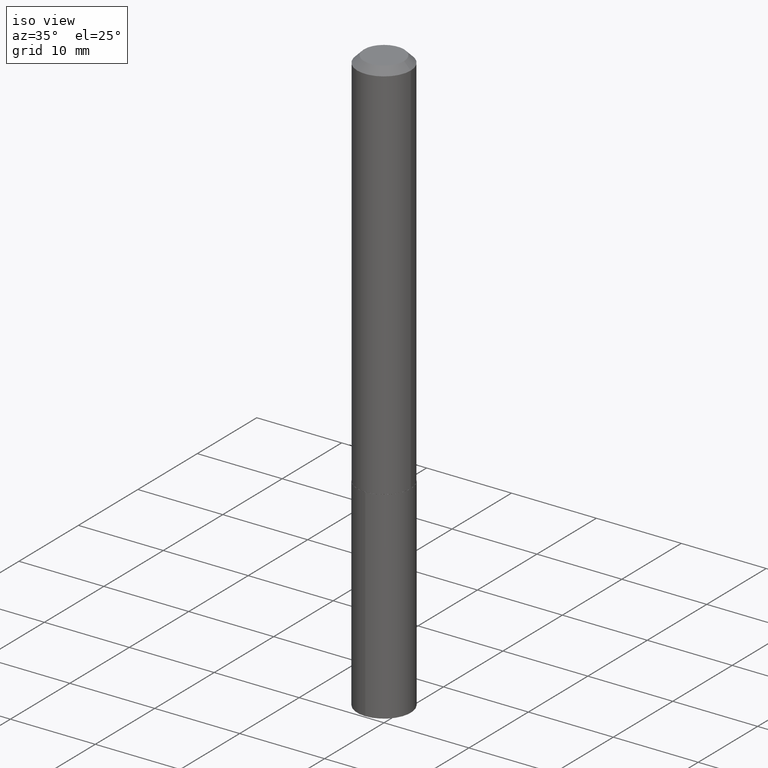
[diagram: clean part render]
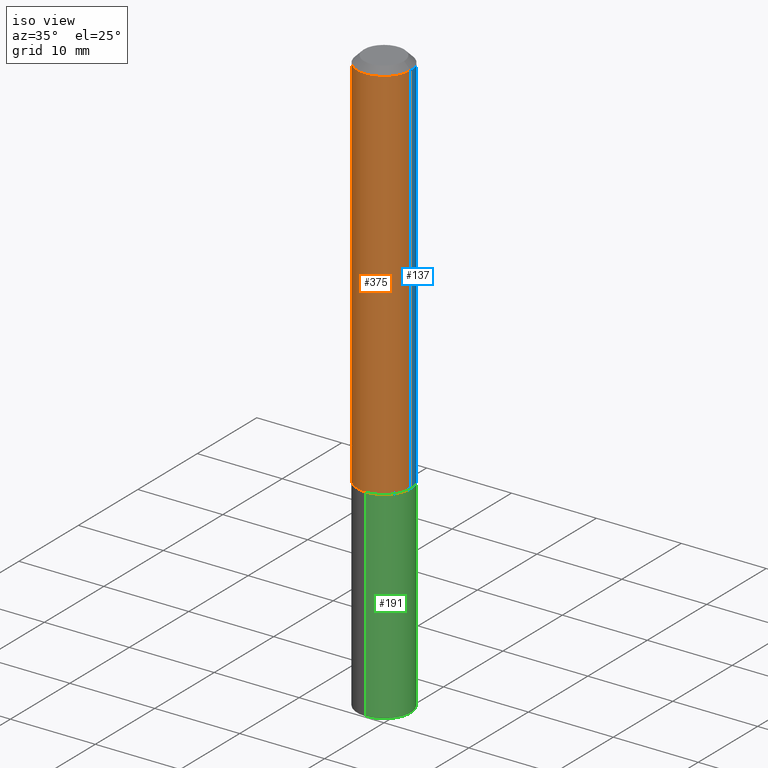
[diagram: same view with three faces highlighted in distinct colors, each labeled with its STEP entity id]
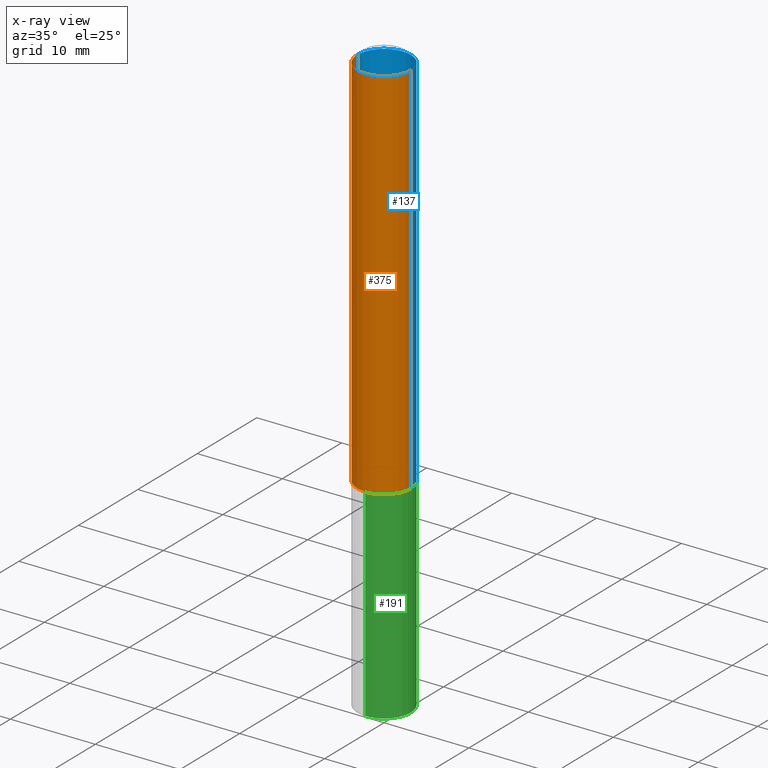
[diagram: x-ray of the same camera — body ghosted, the three highlighted faces saturated]
A machine part, iso view with three faces highlighted in distinct colors.
The next image is the same camera in x-ray (body ghosted, the three faces saturated) — at least one of them is partly hidden behind the body in this view.
Their STEP definitions:

[orange] entity #375 — the highlighted cylindrical surface (edge-blend (fillet) strip) has radius 3.1496 mm, axis along (-0, 0, 1).
#7 = CIRCLE ( 'NONE', #89, 0.1239999999999999991 ) ;
#13 = DIRECTION ( 'NONE',  ( -2.445468806185136877E-29, 3.491481338843145188E-15, 1.000000000000000000 ) ) ;
#20 = DIRECTION ( 'NONE',  ( -2.445468806185136597E-29, 3.491481338843145583E-15, 1.000000000000000000 ) ) ;
#21 = CYLINDRICAL_SURFACE ( 'NONE', #348, 0.1240000000000000963 ) ;
#30 = VERTEX_POINT ( 'NONE', #209 ) ;
#33 = CIRCLE ( 'NONE', #173, 0.1240000000000002073 ) ;
#44 = FACE_OUTER_BOUND ( 'NONE', #146, .T. ) ;
#51 = CARTESIAN_POINT ( 'NONE',  ( 7.642090019328607917E-31, -1.091087918388491006E-16, -0.03125000000000022898 ) ) ;
#56 = DIRECTION ( 'NONE',  ( 1.000000000000000000, -6.982962677686266711E-15, 0.000000000000000000 ) ) ;
#79 = DIRECTION ( 'NONE',  ( -2.445468806185136597E-29, 3.491481338843145583E-15, 1.000000000000000000 ) ) ;
#83 = CARTESIAN_POINT ( 'NONE',  ( 0.1240000000000002073, -7.090849451056543241E-15, -1.782899999999999929 ) ) ;
#89 = AXIS2_PLACEMENT_3D ( 'NONE', #51, #106, #237 ) ;
#96 = EDGE_CURVE ( 'NONE', #252, #234, #7, .T. ) ;
#100 = CARTESIAN_POINT ( 'NONE',  ( 0.000000000000000000, 0.000000000000000000, 0.000000000000000000 ) ) ;
#106 = DIRECTION ( 'NONE',  ( -2.445468806185136597E-29, 3.491481338843145583E-15, 1.000000000000000000 ) ) ;
#118 = ORIENTED_EDGE ( 'NONE', *, *, #353, .F. ) ;
#120 = EDGE_CURVE ( 'NONE', #30, #184, #33, .T. ) ;
#125 = DIRECTION ( 'NONE',  ( -2.445468806185136877E-29, 3.491481338843145188E-15, 1.000000000000000000 ) ) ;
#130 = ORIENTED_EDGE ( 'NONE', *, *, #120, .T. ) ;
#146 = EDGE_LOOP ( 'NONE', ( #118, #130, #241, #366 ) ) ;
#169 = CARTESIAN_POINT ( 'NONE',  ( -0.1240000000000000963, 8.810729923425249144E-16, -6.099479511916088052E-30 ) ) ;
#173 = AXIS2_PLACEMENT_3D ( 'NONE', #362, #79, #56 ) ;
#184 = VERTEX_POINT ( 'NONE', #83 ) ;
#209 = CARTESIAN_POINT ( 'NONE',  ( -0.1240000000000002073, -5.343889086680918537E-15, -1.782899999999999929 ) ) ;
#234 = VERTEX_POINT ( 'NONE', #337 ) ;
#237 = DIRECTION ( 'NONE',  ( 1.000000000000000000, -6.982962677686266711E-15, 0.000000000000000000 ) ) ;
#241 = ORIENTED_EDGE ( 'NONE', *, *, #347, .T. ) ;
#252 = VERTEX_POINT ( 'NONE', #281 ) ;
#258 = LINE ( 'NONE', #169, #338 ) ;
#269 = DIRECTION ( 'NONE',  ( 1.000000000000000000, -6.982962677686266711E-15, 4.876176775795936353E-29 ) ) ;
#281 = CARTESIAN_POINT ( 'NONE',  ( -0.1239999999999999991, -2.285962443088620918E-15, -0.03125000000000022898 ) ) ;
#289 = CARTESIAN_POINT ( 'NONE',  ( 0.1240000000000000963, -8.658873720330977190E-16, 6.046459201986965540E-30 ) ) ;
#316 = LINE ( 'NONE', #289, #341 ) ;
#337 = CARTESIAN_POINT ( 'NONE',  ( 0.1239999999999999991, -9.749961638719460308E-16, -0.03125000000000022898 ) ) ;
#338 = VECTOR ( 'NONE', #125, 39.37007874015748143 ) ;
#341 = VECTOR ( 'NONE', #13, 39.37007874015748143 ) ;
#347 = EDGE_CURVE ( 'NONE', #184, #234, #316, .T. ) ;
#348 = AXIS2_PLACEMENT_3D ( 'NONE', #100, #20, #269 ) ;
#353 = EDGE_CURVE ( 'NONE', #30, #252, #258, .T. ) ;
#362 = CARTESIAN_POINT ( 'NONE',  ( 4.360026334547480023E-29, -6.224962079023444339E-15, -1.782899999999999929 ) ) ;
#366 = ORIENTED_EDGE ( 'NONE', *, *, #96, .F. ) ;
#375 = ADVANCED_FACE ( 'NONE', ( #44 ), #21, .T. ) ;

[blue] entity #137 — the highlighted cylindrical surface (edge-blend (fillet) strip) has radius 3.1496 mm, axis along (-0, 0, 1).
#3 = CARTESIAN_POINT ( 'NONE',  ( 0.000000000000000000, 0.000000000000000000, 0.000000000000000000 ) ) ;
#13 = DIRECTION ( 'NONE',  ( -2.445468806185136877E-29, 3.491481338843145188E-15, 1.000000000000000000 ) ) ;
#29 = DIRECTION ( 'NONE',  ( -2.445468806185136597E-29, 3.491481338843145583E-15, 1.000000000000000000 ) ) ;
#30 = VERTEX_POINT ( 'NONE', #209 ) ;
#66 = AXIS2_PLACEMENT_3D ( 'NONE', #285, #156, #124 ) ;
#72 = AXIS2_PLACEMENT_3D ( 'NONE', #3, #29, #138 ) ;
#83 = CARTESIAN_POINT ( 'NONE',  ( 0.1240000000000002073, -7.090849451056543241E-15, -1.782899999999999929 ) ) ;
#84 = ORIENTED_EDGE ( 'NONE', *, *, #347, .F. ) ;
#93 = EDGE_CURVE ( 'NONE', #184, #30, #340, .T. ) ;
#104 = CIRCLE ( 'NONE', #66, 0.1239999999999999991 ) ;
#124 = DIRECTION ( 'NONE',  ( 1.000000000000000000, -6.982962677686266711E-15, 0.000000000000000000 ) ) ;
#125 = DIRECTION ( 'NONE',  ( -2.445468806185136877E-29, 3.491481338843145188E-15, 1.000000000000000000 ) ) ;
#137 = ADVANCED_FACE ( 'NONE', ( #179 ), #302, .T. ) ;
#138 = DIRECTION ( 'NONE',  ( 1.000000000000000000, -6.982962677686266711E-15, 4.876176775795936353E-29 ) ) ;
#156 = DIRECTION ( 'NONE',  ( -2.445468806185136597E-29, 3.491481338843145583E-15, 1.000000000000000000 ) ) ;
#157 = AXIS2_PLACEMENT_3D ( 'NONE', #319, #380, #199 ) ;
#165 = ORIENTED_EDGE ( 'NONE', *, *, #93, .T. ) ;
#169 = CARTESIAN_POINT ( 'NONE',  ( -0.1240000000000000963, 8.810729923425249144E-16, -6.099479511916088052E-30 ) ) ;
#179 = FACE_OUTER_BOUND ( 'NONE', #356, .T. ) ;
#184 = VERTEX_POINT ( 'NONE', #83 ) ;
#199 = DIRECTION ( 'NONE',  ( 1.000000000000000000, -6.982962677686266711E-15, 0.000000000000000000 ) ) ;
#209 = CARTESIAN_POINT ( 'NONE',  ( -0.1240000000000002073, -5.343889086680918537E-15, -1.782899999999999929 ) ) ;
#234 = VERTEX_POINT ( 'NONE', #337 ) ;
#252 = VERTEX_POINT ( 'NONE', #281 ) ;
#258 = LINE ( 'NONE', #169, #338 ) ;
#263 = ORIENTED_EDGE ( 'NONE', *, *, #313, .F. ) ;
#279 = ORIENTED_EDGE ( 'NONE', *, *, #353, .T. ) ;
#281 = CARTESIAN_POINT ( 'NONE',  ( -0.1239999999999999991, -2.285962443088620918E-15, -0.03125000000000022898 ) ) ;
#285 = CARTESIAN_POINT ( 'NONE',  ( 7.642090019328607917E-31, -1.091087918388491006E-16, -0.03125000000000022898 ) ) ;
#289 = CARTESIAN_POINT ( 'NONE',  ( 0.1240000000000000963, -8.658873720330977190E-16, 6.046459201986965540E-30 ) ) ;
#302 = CYLINDRICAL_SURFACE ( 'NONE', #72, 0.1240000000000000963 ) ;
#313 = EDGE_CURVE ( 'NONE', #234, #252, #104, .T. ) ;
#316 = LINE ( 'NONE', #289, #341 ) ;
#319 = CARTESIAN_POINT ( 'NONE',  ( 4.360026334547480023E-29, -6.224962079023444339E-15, -1.782899999999999929 ) ) ;
#337 = CARTESIAN_POINT ( 'NONE',  ( 0.1239999999999999991, -9.749961638719460308E-16, -0.03125000000000022898 ) ) ;
#338 = VECTOR ( 'NONE', #125, 39.37007874015748143 ) ;
#340 = CIRCLE ( 'NONE', #157, 0.1240000000000002073 ) ;
#341 = VECTOR ( 'NONE', #13, 39.37007874015748143 ) ;
#347 = EDGE_CURVE ( 'NONE', #184, #234, #316, .T. ) ;
#353 = EDGE_CURVE ( 'NONE', #30, #252, #258, .T. ) ;
#356 = EDGE_LOOP ( 'NONE', ( #165, #279, #263, #84 ) ) ;
#380 = DIRECTION ( 'NONE',  ( -2.445468806185136597E-29, 3.491481338843145583E-15, 1.000000000000000000 ) ) ;

[green] entity #191 — the highlighted cylindrical surface (edge-blend (fillet) strip) has radius 3.1496 mm, axis along (-0, 0, 1).
#17 = VERTEX_POINT ( 'NONE', #389 ) ;
#31 = DIRECTION ( 'NONE',  ( -6.982962677686265922E-15, -1.000000000000000000, 4.406206441393973340E-15 ) ) ;
#61 = CARTESIAN_POINT ( 'NONE',  ( 4.361249068950572264E-29, -6.226707819692865054E-15, -1.783399999999999874 ) ) ;
#63 = CYLINDRICAL_SURFACE ( 'NONE', #103, 0.1239999999999999991 ) ;
#64 = EDGE_CURVE ( 'NONE', #294, #17, #323, .T. ) ;
#81 = DIRECTION ( 'NONE',  ( -6.982962677686265922E-15, -1.000000000000000000, 4.406206441393973340E-15 ) ) ;
#103 = AXIS2_PLACEMENT_3D ( 'NONE', #61, #177, #31 ) ;
#107 = DIRECTION ( 'NONE',  ( -2.445509388913140721E-29, 3.491423222066817992E-15, 1.000000000000000000 ) ) ;
#117 = EDGE_CURVE ( 'NONE', #294, #128, #268, .T. ) ;
#128 = VERTEX_POINT ( 'NONE', #141 ) ;
#132 = CIRCLE ( 'NONE', #324, 0.1239999999999999991 ) ;
#135 = CARTESIAN_POINT ( 'NONE',  ( 6.658253188704195551E-29, -9.506111923087129660E-15, -2.722674300138541614 ) ) ;
#141 = CARTESIAN_POINT ( 'NONE',  ( 8.810729923425908829E-16, 0.1239999999999905067, -2.722674300138542502 ) ) ;
#147 = DIRECTION ( 'NONE',  ( -2.445509388913141001E-29, 3.491423222066818386E-15, 1.000000000000000000 ) ) ;
#177 = DIRECTION ( 'NONE',  ( -2.445509388913140721E-29, 3.491423222066817992E-15, 1.000000000000000000 ) ) ;
#178 = ORIENTED_EDGE ( 'NONE', *, *, #117, .T. ) ;
#183 = LINE ( 'NONE', #219, #369 ) ;
#185 = CARTESIAN_POINT ( 'NONE',  ( 4.361249068950572264E-29, -6.226707819692865054E-15, -1.783399999999999874 ) ) ;
#191 = ADVANCED_FACE ( 'NONE', ( #303 ), #63, .T. ) ;
#194 = AXIS2_PLACEMENT_3D ( 'NONE', #135, #107, #239 ) ;
#197 = CARTESIAN_POINT ( 'NONE',  ( -8.658873720330533455E-16, -0.1240000000000062302, -1.783399999999999430 ) ) ;
#219 = CARTESIAN_POINT ( 'NONE',  ( 8.810729923425676115E-16, 0.1239999999999937680, -1.783400000000000540 ) ) ;
#224 = ORIENTED_EDGE ( 'NONE', *, *, #235, .T. ) ;
#227 = EDGE_CURVE ( 'NONE', #17, #367, #132, .T. ) ;
#235 = EDGE_CURVE ( 'NONE', #128, #367, #183, .T. ) ;
#239 = DIRECTION ( 'NONE',  ( -6.982962677686265922E-15, -1.000000000000000000, 4.406206441393973340E-15 ) ) ;
#268 = CIRCLE ( 'NONE', #194, 0.1239999999999999991 ) ;
#271 = ORIENTED_EDGE ( 'NONE', *, *, #64, .F. ) ;
#287 = ORIENTED_EDGE ( 'NONE', *, *, #227, .F. ) ;
#294 = VERTEX_POINT ( 'NONE', #314 ) ;
#298 = EDGE_LOOP ( 'NONE', ( #178, #224, #287, #271 ) ) ;
#303 = FACE_OUTER_BOUND ( 'NONE', #298, .T. ) ;
#306 = DIRECTION ( 'NONE',  ( -2.445509388913140721E-29, 3.491423222066817992E-15, 1.000000000000000000 ) ) ;
#314 = CARTESIAN_POINT ( 'NONE',  ( -8.658873720330303700E-16, -0.1240000000000095193, -2.722674300138541170 ) ) ;
#323 = LINE ( 'NONE', #197, #373 ) ;
#324 = AXIS2_PLACEMENT_3D ( 'NONE', #185, #306, #81 ) ;
#352 = DIRECTION ( 'NONE',  ( -2.445509388913141001E-29, 3.491423222066818386E-15, 1.000000000000000000 ) ) ;
#367 = VERTEX_POINT ( 'NONE', #379 ) ;
#369 = VECTOR ( 'NONE', #147, 39.37007874015748143 ) ;
#373 = VECTOR ( 'NONE', #352, 39.37007874015748143 ) ;
#379 = CARTESIAN_POINT ( 'NONE',  ( 8.810729923425908829E-16, 0.1239999999999937819, -1.783400000000000540 ) ) ;
#389 = CARTESIAN_POINT ( 'NONE',  ( -8.658873720330533455E-16, -0.1240000000000062302, -1.783399999999999430 ) ) ;